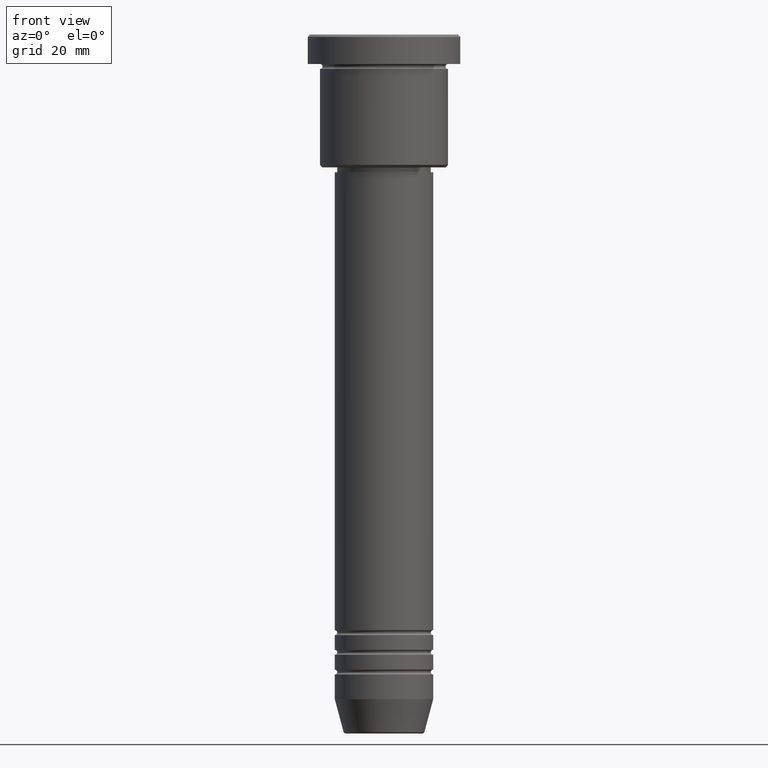
[diagram: clean part render]
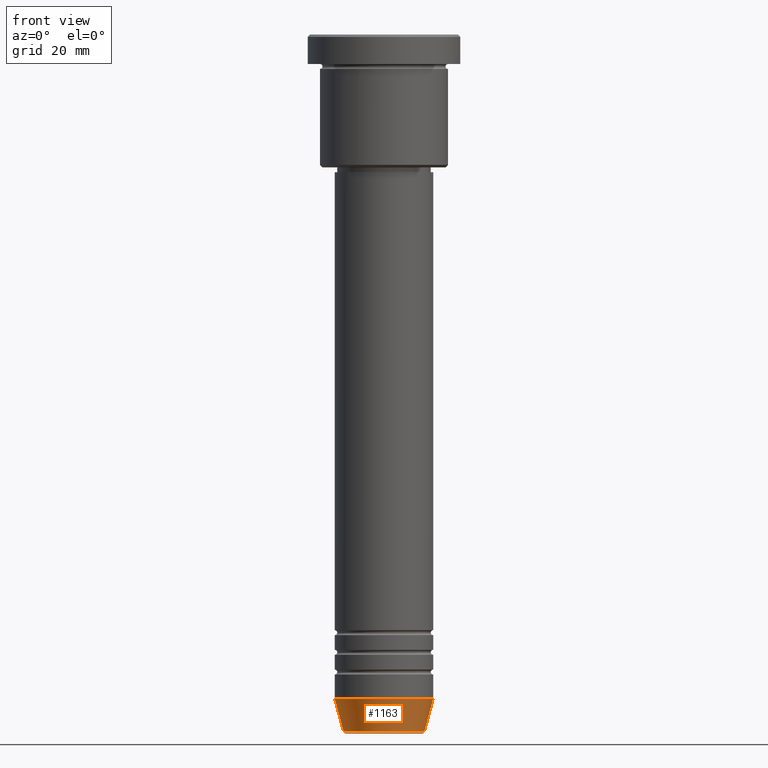
[diagram: same view with one face highlighted and labeled with its STEP entity id]
A machine part, front view. The second image highlights one B-rep face of the part: STEP entity #1163.
In plain terms, the highlighted conical surface has half-angle 15 deg.
Its self-contained STEP definition (entity closure, byte-faithful):
#79 = VERTEX_POINT ( 'NONE', #449 ) ;
#104 = DIRECTION ( 'NONE',  ( 1.000000000000000000, 0.000000000000000000, 0.000000000000000000 ) ) ;
#113 = CARTESIAN_POINT ( 'NONE',  ( -10.00000000000000000, 1.224646799147353256E-15, -135.0000000000000000 ) ) ;
#155 = DIRECTION ( 'NONE',  ( 0.2588190451025210725, 0.000000000000000000, 0.9659258262890680902 ) ) ;
#161 = LINE ( 'NONE', #444, #1174 ) ;
#201 = DIRECTION ( 'NONE',  ( -0.000000000000000000, -0.000000000000000000, 1.000000000000000000 ) ) ;
#211 = FACE_OUTER_BOUND ( 'NONE', #750, .T. ) ;
#240 = AXIS2_PLACEMENT_3D ( 'NONE', #1123, #686, #408 ) ;
#339 = AXIS2_PLACEMENT_3D ( 'NONE', #1024, #201, #104 ) ;
#385 = EDGE_CURVE ( 'NONE', #79, #628, #1153, .T. ) ;
#408 = DIRECTION ( 'NONE',  ( 1.000000000000000000, 0.000000000000000000, 0.000000000000000000 ) ) ;
#439 = AXIS2_PLACEMENT_3D ( 'NONE', #572, #1034, #577 ) ;
#444 = CARTESIAN_POINT ( 'NONE',  ( -10.00000000000000000, 1.224646799147353256E-15, -135.0000000000000000 ) ) ;
#449 = CARTESIAN_POINT ( 'NONE',  ( -8.223655072137185940, 1.115877042642911659E-15, -141.6294095225512990 ) ) ;
#556 = ORIENTED_EDGE ( 'NONE', *, *, #599, .F. ) ;
#572 = CARTESIAN_POINT ( 'NONE',  ( 0.000000000000000000, 0.000000000000000000, -135.0000000000000000 ) ) ;
#576 = ORIENTED_EDGE ( 'NONE', *, *, #619, .F. ) ;
#577 = DIRECTION ( 'NONE',  ( 1.000000000000000000, 0.000000000000000000, 0.000000000000000000 ) ) ;
#585 = ORIENTED_EDGE ( 'NONE', *, *, #385, .T. ) ;
#591 = ORIENTED_EDGE ( 'NONE', *, *, #923, .T. ) ;
#599 = EDGE_CURVE ( 'NONE', #79, #1166, #161, .T. ) ;
#619 = EDGE_CURVE ( 'NONE', #1166, #1077, #818, .T. ) ;
#628 = VERTEX_POINT ( 'NONE', #743 ) ;
#686 = DIRECTION ( 'NONE',  ( -0.000000000000000000, -0.000000000000000000, 1.000000000000000000 ) ) ;
#691 = CARTESIAN_POINT ( 'NONE',  ( 10.00000000000000000, 0.000000000000000000, -135.0000000000000000 ) ) ;
#743 = CARTESIAN_POINT ( 'NONE',  ( 8.223655072137185940, 0.000000000000000000, -141.6294095225512990 ) ) ;
#750 = EDGE_LOOP ( 'NONE', ( #556, #585, #591, #576 ) ) ;
#807 = DIRECTION ( 'NONE',  ( -0.2588190451025210725, 3.169619151431769255E-17, 0.9659258262890680902 ) ) ;
#818 = CIRCLE ( 'NONE', #339, 10.00000000000000000 ) ;
#878 = VECTOR ( 'NONE', #155, 1000.000000000000114 ) ;
#923 = EDGE_CURVE ( 'NONE', #628, #1077, #1147, .T. ) ;
#952 = CONICAL_SURFACE ( 'NONE', #439, 10.00000000000000000, 0.2617993877991497964 ) ;
#1024 = CARTESIAN_POINT ( 'NONE',  ( 0.000000000000000000, 0.000000000000000000, -135.0000000000000000 ) ) ;
#1034 = DIRECTION ( 'NONE',  ( -0.000000000000000000, -0.000000000000000000, 1.000000000000000000 ) ) ;
#1077 = VERTEX_POINT ( 'NONE', #1112 ) ;
#1112 = CARTESIAN_POINT ( 'NONE',  ( 10.00000000000000000, 0.000000000000000000, -135.0000000000000000 ) ) ;
#1123 = CARTESIAN_POINT ( 'NONE',  ( 0.000000000000000000, 0.000000000000000000, -141.6294095225512990 ) ) ;
#1147 = LINE ( 'NONE', #691, #878 ) ;
#1153 = CIRCLE ( 'NONE', #240, 8.223655072137185940 ) ;
#1163 = ADVANCED_FACE ( 'NONE', ( #211 ), #952, .T. ) ;
#1166 = VERTEX_POINT ( 'NONE', #113 ) ;
#1174 = VECTOR ( 'NONE', #807, 1000.000000000000114 ) ;